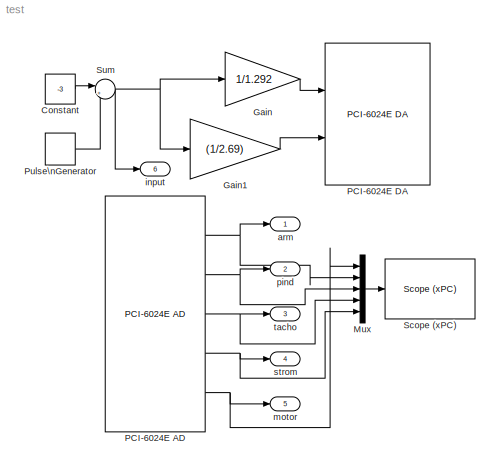
MODEL test
KIND model
BLOCK [Constant] Constant
  OutDataType = fixdt(1, 16)
  OutScaling = 2^0
  SID = 60
  Value = -3
BLOCK [Gain] Gain
  Gain = 1/1.292
  OutDataType = fixdt(1, 16)
  OutDataTypeMode = Inherit via internal rule
  OutDataTypeStr = Inherit: Inherit via internal rule
  OutScaling = 2^0
  ParamDataTypeStr = Inherit: Inherit via internal rule
  ParameterDataType = fixdt(1, 16)
  ParameterDataTypeMode = Inherit via internal rule
  ParameterScaling = 2^0
  SID = 39
  SaturateOnIntegerOverflow = off
BLOCK [Gain] Gain1
  Gain = (1/2.69)
  OutDataType = fixdt(1, 16)
  OutDataTypeMode = Inherit via internal rule
  OutDataTypeStr = Inherit: Inherit via internal rule
  OutScaling = 2^0
  ParamDataTypeStr = Inherit: Inherit via internal rule
  ParameterDataType = fixdt(1, 16)
  ParameterDataTypeMode = Inherit via internal rule
  ParameterScaling = 2^0
  SID = 40
  SaturateOnIntegerOverflow = off
BLOCK [Mux] Mux
  DisplayOption = bar
  Inputs = 5
  Ports = [5, 1]
  SID = 42
BLOCK [Reference] PCI-6024E AD  REF=xpcnilib/A//D/E Series/PCI-6024E AD
  Ports = [0, 5]
  SID = 43
  SourceBlock = xpcnilib/A//D/E Series/PCI-6024E AD
  SourceType = adnipci6024e
  channel = [1 2 3 4 5]
  coupling = [0]
  range = [-10]
  sampletime = 0.01
  slot = -1
BLOCK [Reference] PCI-6024E DA  REF=xpcnilib/D//A/E Series/PCI-6024E DA
  Ports = [2]
  SID = 44
  SourceBlock = xpcnilib/D//A/E Series/PCI-6024E DA
  SourceType = danipci6024e
  channel = [1 2]
  initValue = [0]
  reset = [1]
  sampletime = 0.01
  slot = -1
BLOCK [DiscretePulseGenerator] Pulse\nGenerator
  Amplitude = 6
  Period = 4
  PhaseDelay = 0
  Ports = [0, 1]
  PulseType = Time based
  PulseWidth = 50
  SID = 61
  SampleTime = 1
BLOCK [Reference] Scope (xPC)   REF=xpclib/Misc./Scope (xPC) 
  FunctionWithSeparateData = off
  Ports = [1]
  RTWMemSecDataConstants = Inherit from model
  RTWMemSecDataInternal = Inherit from model
  RTWMemSecDataParameters = Inherit from model
  RTWMemSecFuncExecute = Inherit from model
  RTWMemSecFuncInitTerm = Inherit from model
  SID = 46
  ShowPortLabels = FromPortIcon
  SourceBlock = xpclib/Misc./Scope (xPC)
  SourceType = xpcscopeblock
  SystemSampleTime = -1
  autorestart = off
  autostart = on
  dynamicfilemode = off
  filename = data.dat
  formatstr = '%15.6f'
  grid = on
  interleave = 1
  maxwritefilesize = 512*1024^2
  mode = Lazy
  noprepostsamples = 0
  nosamples = 250
  scopeno = 2
  scopetype = Target
  triggerlevel = 0.0
  triggermode = FreeRun
  triggersample = 0
  triggerscope = 1
  triggersignal = 1
  triggerslope = Either
  viewmode = Numerical
  writesize = 512
  ylimits = [-5,5]
BLOCK [Sum] Sum
  IconShape = round
  InputSameDT = off
  Inputs = |++
  OutDataType = fixdt(1, 16)
  OutDataTypeMode = Inherit via internal rule
  OutDataTypeStr = Inherit: Inherit via internal rule
  OutScaling = 2^0
  Ports = [2, 1]
  SID = 62
  SaturateOnIntegerOverflow = off
BLOCK [Outport] arm
  IconDisplay = Port number
  OutDataType = fixdt(1, 16)
  OutScaling = 2^0
  SID = 50
BLOCK [Outport] input
  IconDisplay = Port number
  OutDataType = fixdt(1, 16)
  OutScaling = 2^0
  Port = 6
  SID = 63
BLOCK [Outport] motor
  IconDisplay = Port number
  OutDataType = fixdt(1, 16)
  OutScaling = 2^0
  Port = 5
  SID = 54
BLOCK [Outport] pind
  IconDisplay = Port number
  OutDataType = fixdt(1, 16)
  OutScaling = 2^0
  Port = 2
  SID = 51
BLOCK [Outport] strom
  IconDisplay = Port number
  OutDataType = fixdt(1, 16)
  OutScaling = 2^0
  Port = 4
  SID = 53
BLOCK [Outport] tacho
  IconDisplay = Port number
  OutDataType = fixdt(1, 16)
  OutScaling = 2^0
  Port = 3
  SID = 52
LINE Constant:1 -> Sum:1
LINE Gain1:1 -> PCI-6024E DA:2
LINE Gain:1 -> PCI-6024E DA:1
LINE Mux:1 -> Scope (xPC) :1
NET PCI-6024E AD:1 -> Mux:2, arm:1
NET PCI-6024E AD:2 -> Mux:3, pind:1
NET PCI-6024E AD:3 -> Mux:4, tacho:1
NET PCI-6024E AD:4 -> Mux:5, strom:1
NET PCI-6024E AD:5 -> Mux:1, motor:1
LINE Pulse\nGenerator:1 -> Sum:2
NET Sum:1 -> Gain1:1, Gain:1, input:1
note: NET lines group one-source signal fan-out (src -> all destinations, sorted); 1:1 wires keep LINE
